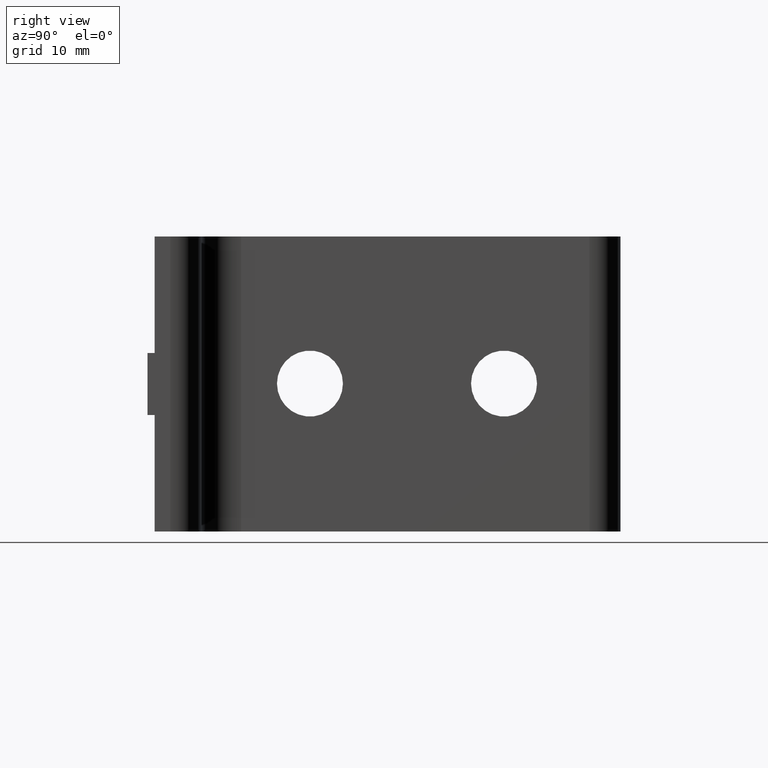
[diagram: clean part render]
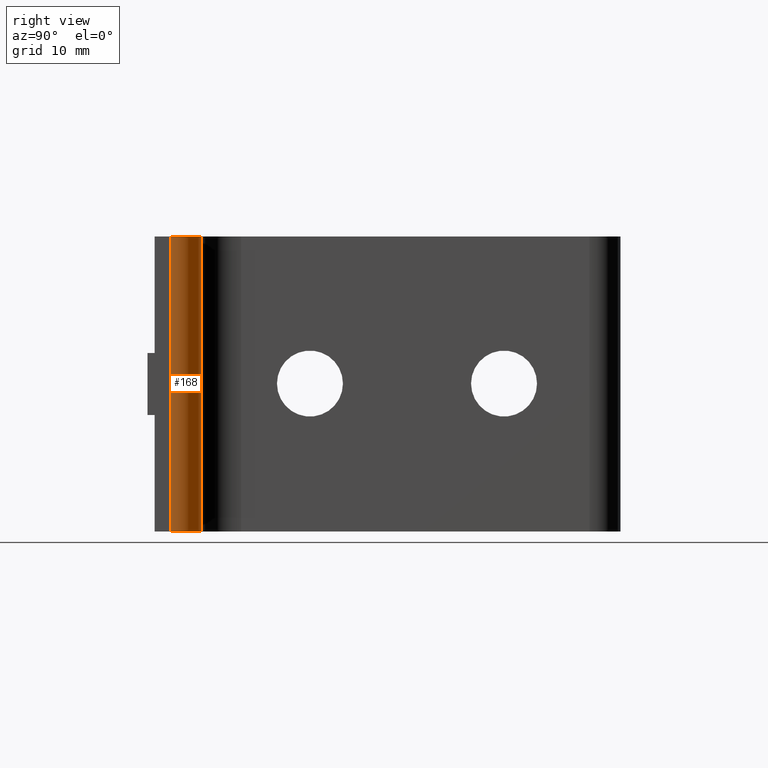
[diagram: same view with one face highlighted and labeled with its STEP entity id]
A machine part, right view. The second image highlights one B-rep face of the part: STEP entity #168.
In plain terms, the highlighted cylindrical surface (edge-blend (fillet) strip) has radius 4 mm, axis along (0, 0, 1).
Its self-contained STEP definition (entity closure, byte-faithful):
#78=CARTESIAN_POINT('',(59.999989242193351,2.000001343853455,-18.999991966924856));
#79=VERTEX_POINT('',#78);
#80=CARTESIAN_POINT('',(59.999989242193351,2.000001343853455,18.999991966924856));
#81=VERTEX_POINT('',#80);
#82=CARTESIAN_POINT('',(59.999989242193351,2.000001343853455,-18.999991966924856));
#83=DIRECTION('',(0.0,0.0,1.0));
#84=VECTOR('',#83,37.999983933849713);
#85=LINE('',#82,#84);
#86=EDGE_CURVE('',#79,#81,#85,.T.);
#136=CARTESIAN_POINT('',(55.999990130163496,2.000001343853455,-18.999991966924856));
#137=DIRECTION('',(0.0,0.0,1.0));
#138=DIRECTION('',(1.0,0.0,0.0));
#139=AXIS2_PLACEMENT_3D('',#136,#137,#138);
#140=CYLINDRICAL_SURFACE('',#139,3.999999112029855);
#141=CARTESIAN_POINT('',(55.999990130153947,6.000000455882855,-18.999991966924856));
#142=VERTEX_POINT('',#141);
#143=CARTESIAN_POINT('',(55.999990130163496,2.000001343853455,-18.999991966924856));
#144=DIRECTION('',(0.0,0.0,1.0));
#145=DIRECTION('',(1.0,0.0,0.0));
#146=AXIS2_PLACEMENT_3D('',#143,#144,#145);
#147=CIRCLE('',#146,3.999999112029855);
#148=EDGE_CURVE('',#79,#142,#147,.T.);
#149=ORIENTED_EDGE('',*,*,#148,.T.);
#150=CARTESIAN_POINT('',(55.999990130153947,6.000000455882855,18.999991966924856));
#151=VERTEX_POINT('',#150);
#152=CARTESIAN_POINT('',(55.999990130153947,6.000000455882855,-18.999991966924856));
#153=DIRECTION('',(0.0,0.0,1.0));
#154=VECTOR('',#153,37.999983933849713);
#155=LINE('',#152,#154);
#156=EDGE_CURVE('',#142,#151,#155,.T.);
#157=ORIENTED_EDGE('',*,*,#156,.T.);
#158=CARTESIAN_POINT('',(55.999990130163496,2.000001343853455,18.999991966924856));
#159=DIRECTION('',(0.0,0.0,1.0));
#160=DIRECTION('',(1.0,0.0,0.0));
#161=AXIS2_PLACEMENT_3D('',#158,#159,#160);
#162=CIRCLE('',#161,3.999999112029855);
#163=EDGE_CURVE('',#81,#151,#162,.T.);
#164=ORIENTED_EDGE('',*,*,#163,.F.);
#165=ORIENTED_EDGE('',*,*,#86,.F.);
#166=EDGE_LOOP('',(#149,#157,#164,#165));
#167=FACE_OUTER_BOUND('',#166,.T.);
#168=ADVANCED_FACE('',(#167),#140,.T.);